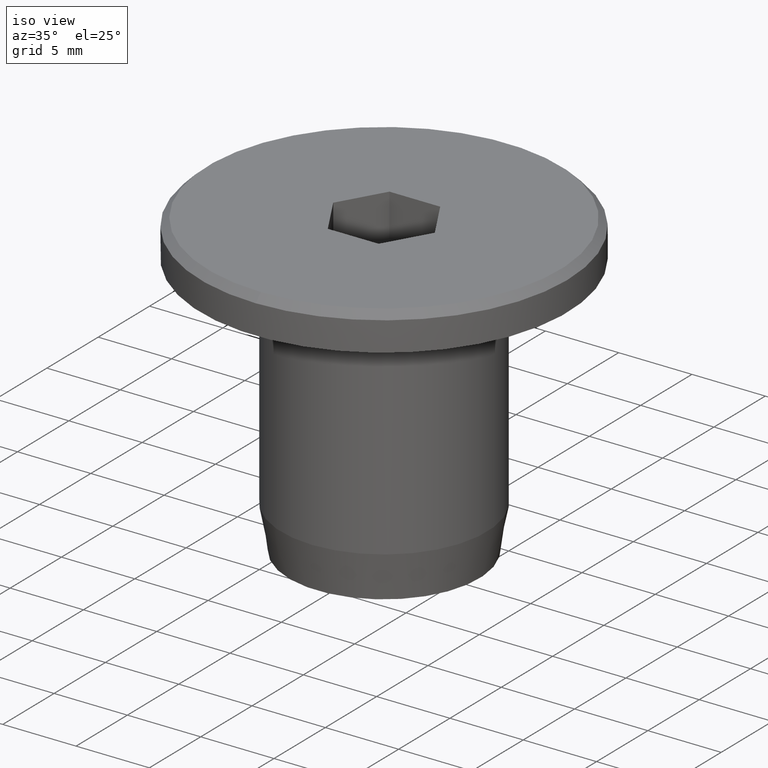
[diagram: clean part render]
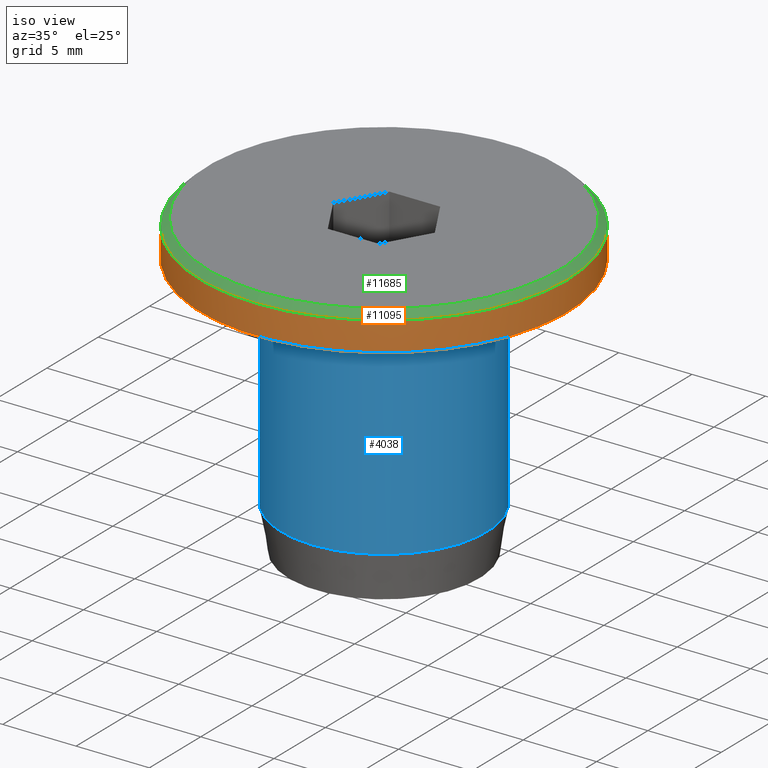
[diagram: same view with three faces highlighted in distinct colors, each labeled with its STEP entity id]
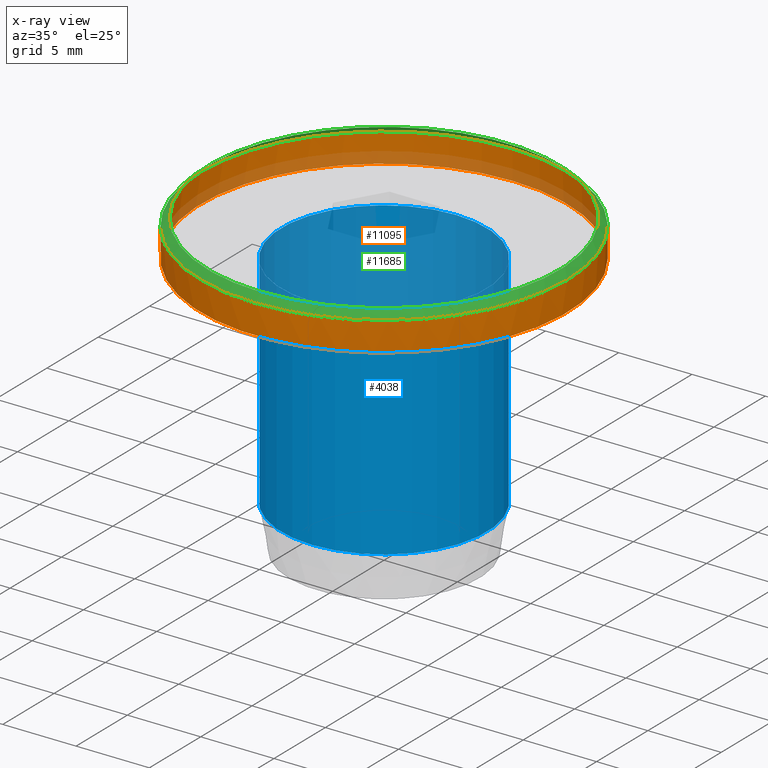
[diagram: x-ray of the same camera — body ghosted, the three highlighted faces saturated]
A machine part, iso view with three faces highlighted in distinct colors.
The next image is the same camera in x-ray (body ghosted, the three faces saturated) — at least one of them is partly hidden behind the body in this view.
Their STEP definitions:

[orange] entity #11095 — the highlighted cylindrical surface (bore or boss wall) has radius 12.5 mm, axis along (-0, 0, -1).
#632 = CARTESIAN_POINT ( 'NONE',  ( 0.000000000000000000, -6.304169469169922039E-16, 9.750000000000008882 ) ) ;
#1526 = EDGE_CURVE ( 'NONE', #3789, #3789, #3034, .T. ) ;
#1562 = AXIS2_PLACEMENT_3D ( 'NONE', #14521, #12000, #5663 ) ;
#1780 = VERTEX_POINT ( 'NONE', #15000 ) ;
#1922 = DIRECTION ( 'NONE',  ( 0.000000000000000000, -1.000000000000000000, -2.775557561562891351E-16 ) ) ;
#2040 = DIRECTION ( 'NONE',  ( -0.000000000000000000, 2.332352011257933532E-16, -1.000000000000000000 ) ) ;
#2956 = FACE_OUTER_BOUND ( 'NONE', #5191, .T. ) ;
#3034 = CIRCLE ( 'NONE', #1562, 12.50000000000000000 ) ;
#3789 = VERTEX_POINT ( 'NONE', #16003 ) ;
#4203 = EDGE_CURVE ( 'NONE', #1780, #1780, #14553, .T. ) ;
#4522 = DIRECTION ( 'NONE',  ( 0.000000000000000000, 1.000000000000000000, 2.775557561562891351E-16 ) ) ;
#5191 = EDGE_LOOP ( 'NONE', ( #6143 ) ) ;
#5663 = DIRECTION ( 'NONE',  ( 0.000000000000000000, 1.000000000000000000, 2.081668171172168513E-16 ) ) ;
#6143 = ORIENTED_EDGE ( 'NONE', *, *, #1526, .F. ) ;
#7780 = ORIENTED_EDGE ( 'NONE', *, *, #4203, .T. ) ;
#8508 = CYLINDRICAL_SURFACE ( 'NONE', #11554, 12.50000000000000000 ) ;
#9686 = CARTESIAN_POINT ( 'NONE',  ( 0.000000000000000000, 4.034287075598876437E-15, -10.24999999999999822 ) ) ;
#11059 = AXIS2_PLACEMENT_3D ( 'NONE', #632, #14587, #1922 ) ;
#11095 = ADVANCED_FACE ( 'NONE', ( #16305, #2956 ), #8508, .T. ) ;
#11554 = AXIS2_PLACEMENT_3D ( 'NONE', #9686, #2040, #4522 ) ;
#12000 = DIRECTION ( 'NONE',  ( -0.000000000000000000, 2.332352011257933532E-16, -1.000000000000000000 ) ) ;
#14521 = CARTESIAN_POINT ( 'NONE',  ( 0.000000000000000000, -1.639465446654030324E-16, 7.750000000000000000 ) ) ;
#14553 = CIRCLE ( 'NONE', #11059, 12.50000000000000000 ) ;
#14587 = DIRECTION ( 'NONE',  ( -0.000000000000000000, 2.332352011257926136E-16, -1.000000000000000000 ) ) ;
#14667 = EDGE_LOOP ( 'NONE', ( #7780 ) ) ;
#15000 = CARTESIAN_POINT ( 'NONE',  ( 0.000000000000000000, -12.50000000000000000, 9.750000000000005329 ) ) ;
#16003 = CARTESIAN_POINT ( 'NONE',  ( 0.000000000000000000, 12.50000000000000000, 7.750000000000002665 ) ) ;
#16305 = FACE_OUTER_BOUND ( 'NONE', #14667, .T. ) ;

[blue] entity #4038 — the highlighted cylindrical surface (bore or boss wall) has radius 7 mm, axis along (-0, 0, -1).
#234 = DIRECTION ( 'NONE',  ( 0.000000000000000000, 1.000000000000000000, 2.478176394252579662E-16 ) ) ;
#1037 = DIRECTION ( 'NONE',  ( -0.000000000000000000, 2.332352011257933532E-16, -1.000000000000000000 ) ) ;
#1371 = ORIENTED_EDGE ( 'NONE', *, *, #9564, .T. ) ;
#1476 = EDGE_LOOP ( 'NONE', ( #1371 ) ) ;
#2708 = CIRCLE ( 'NONE', #16356, 7.000000000000002665 ) ;
#3528 = CARTESIAN_POINT ( 'NONE',  ( 0.000000000000000000, 7.000000000000005329, 7.749999999999998224 ) ) ;
#3921 = DIRECTION ( 'NONE',  ( 0.000000000000000000, -2.332352011257933039E-16, 1.000000000000000000 ) ) ;
#4038 = ADVANCED_FACE ( 'NONE', ( #12773, #5396 ), #15762, .T. ) ;
#4992 = CARTESIAN_POINT ( 'NONE',  ( 0.000000000000000000, 4.034287075598876437E-15, -10.24999999999999822 ) ) ;
#5396 = FACE_OUTER_BOUND ( 'NONE', #14601, .T. ) ;
#6637 = DIRECTION ( 'NONE',  ( 0.000000000000000000, 1.000000000000000000, 2.478176394252580648E-16 ) ) ;
#6923 = CIRCLE ( 'NONE', #14683, 7.000000000000005329 ) ;
#9122 = CARTESIAN_POINT ( 'NONE',  ( 0.000000000000000000, -1.639465446654022682E-16, 7.749999999999996447 ) ) ;
#9564 = EDGE_CURVE ( 'NONE', #11521, #11521, #2708, .T. ) ;
#10768 = AXIS2_PLACEMENT_3D ( 'NONE', #4992, #1037, #16360 ) ;
#11521 = VERTEX_POINT ( 'NONE', #16217 ) ;
#12118 = EDGE_CURVE ( 'NONE', #14517, #14517, #6923, .T. ) ;
#12773 = FACE_OUTER_BOUND ( 'NONE', #1476, .T. ) ;
#12966 = DIRECTION ( 'NONE',  ( -0.000000000000000000, 2.332352011257933532E-16, -1.000000000000000000 ) ) ;
#14272 = CARTESIAN_POINT ( 'NONE',  ( 0.000000000000000000, 3.334581472221546273E-15, -7.250000000000213163 ) ) ;
#14409 = ORIENTED_EDGE ( 'NONE', *, *, #12118, .T. ) ;
#14517 = VERTEX_POINT ( 'NONE', #3528 ) ;
#14601 = EDGE_LOOP ( 'NONE', ( #14409 ) ) ;
#14683 = AXIS2_PLACEMENT_3D ( 'NONE', #9122, #12966, #234 ) ;
#15762 = CYLINDRICAL_SURFACE ( 'NONE', #10768, 7.000000000000002665 ) ;
#16217 = CARTESIAN_POINT ( 'NONE',  ( 0.000000000000000000, 7.000000000000006217, -7.250000000000211386 ) ) ;
#16356 = AXIS2_PLACEMENT_3D ( 'NONE', #14272, #3921, #6637 ) ;
#16360 = DIRECTION ( 'NONE',  ( 0.000000000000000000, 1.000000000000000000, 2.478176394252580648E-16 ) ) ;

[green] entity #11685 — the highlighted conical surface has half-angle 45 deg.
#632 = CARTESIAN_POINT ( 'NONE',  ( 0.000000000000000000, -6.304169469169922039E-16, 9.750000000000008882 ) ) ;
#1102 = FACE_OUTER_BOUND ( 'NONE', #9602, .T. ) ;
#1780 = VERTEX_POINT ( 'NONE', #15000 ) ;
#1922 = DIRECTION ( 'NONE',  ( 0.000000000000000000, -1.000000000000000000, -2.775557561562891351E-16 ) ) ;
#2626 = AXIS2_PLACEMENT_3D ( 'NONE', #15130, #8593, #8765 ) ;
#2949 = AXIS2_PLACEMENT_3D ( 'NONE', #4197, #5521, #13093 ) ;
#4197 = CARTESIAN_POINT ( 'NONE',  ( 0.000000000000000000, -6.304169469169915137E-16, 9.750000000000005329 ) ) ;
#4203 = EDGE_CURVE ( 'NONE', #1780, #1780, #14553, .T. ) ;
#4849 = CARTESIAN_POINT ( 'NONE',  ( 0.000000000000000000, -12.00000000000000533, 10.24999999999999467 ) ) ;
#5521 = DIRECTION ( 'NONE',  ( -0.000000000000000000, 2.332352011257926136E-16, -1.000000000000000000 ) ) ;
#5920 = FACE_BOUND ( 'NONE', #9131, .T. ) ;
#8593 = DIRECTION ( 'NONE',  ( 0.000000000000000000, -2.332352011257933532E-16, 1.000000000000000000 ) ) ;
#8765 = DIRECTION ( 'NONE',  ( 0.000000000000000000, -1.000000000000000000, -2.891205793294677340E-16 ) ) ;
#9131 = EDGE_LOOP ( 'NONE', ( #9489 ) ) ;
#9489 = ORIENTED_EDGE ( 'NONE', *, *, #13967, .F. ) ;
#9602 = EDGE_LOOP ( 'NONE', ( #10708 ) ) ;
#9831 = CIRCLE ( 'NONE', #2626, 12.00000000000000533 ) ;
#10708 = ORIENTED_EDGE ( 'NONE', *, *, #4203, .F. ) ;
#11059 = AXIS2_PLACEMENT_3D ( 'NONE', #632, #14587, #1922 ) ;
#11685 = ADVANCED_FACE ( 'NONE', ( #5920, #1102 ), #11881, .T. ) ;
#11881 = CONICAL_SURFACE ( 'NONE', #2949, 12.50000000000000000, 0.7853981633974500554 ) ;
#13093 = DIRECTION ( 'NONE',  ( 0.000000000000000000, 1.000000000000000000, 2.775557561562891351E-16 ) ) ;
#13967 = EDGE_CURVE ( 'NONE', #14715, #14715, #9831, .T. ) ;
#14553 = CIRCLE ( 'NONE', #11059, 12.50000000000000000 ) ;
#14587 = DIRECTION ( 'NONE',  ( -0.000000000000000000, 2.332352011257926136E-16, -1.000000000000000000 ) ) ;
#14715 = VERTEX_POINT ( 'NONE', #4849 ) ;
#15000 = CARTESIAN_POINT ( 'NONE',  ( 0.000000000000000000, -12.50000000000000000, 9.750000000000005329 ) ) ;
#15130 = CARTESIAN_POINT ( 'NONE',  ( 0.000000000000000000, -7.470345474798865139E-16, 10.24999999999999822 ) ) ;